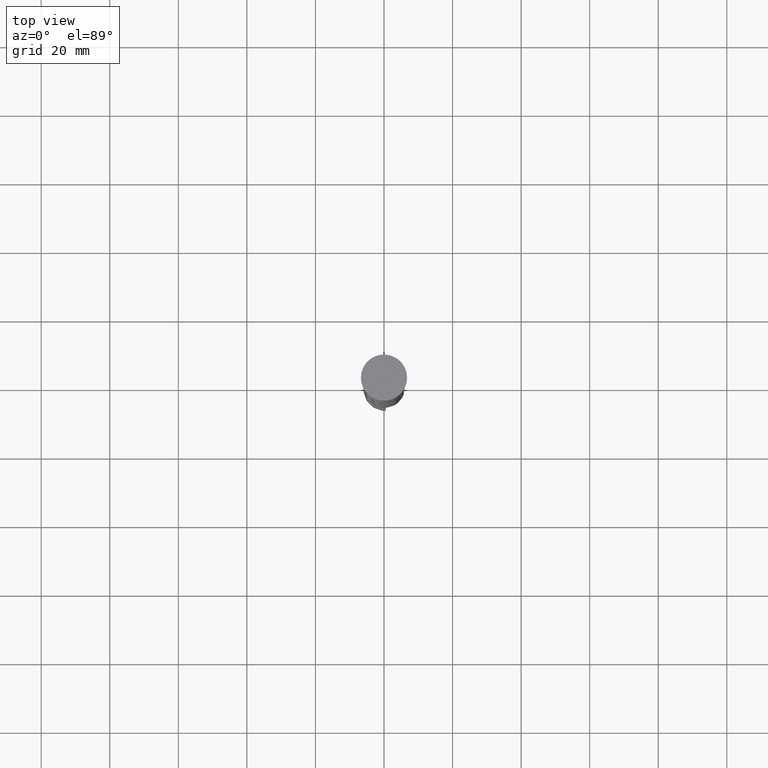
[diagram: clean part render]
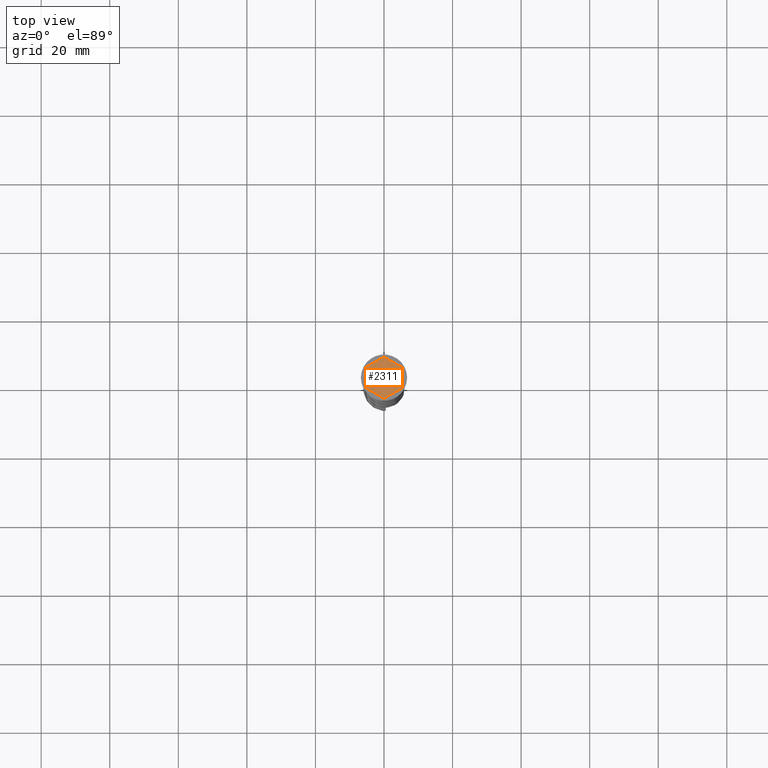
[diagram: same view with one face highlighted and labeled with its STEP entity id]
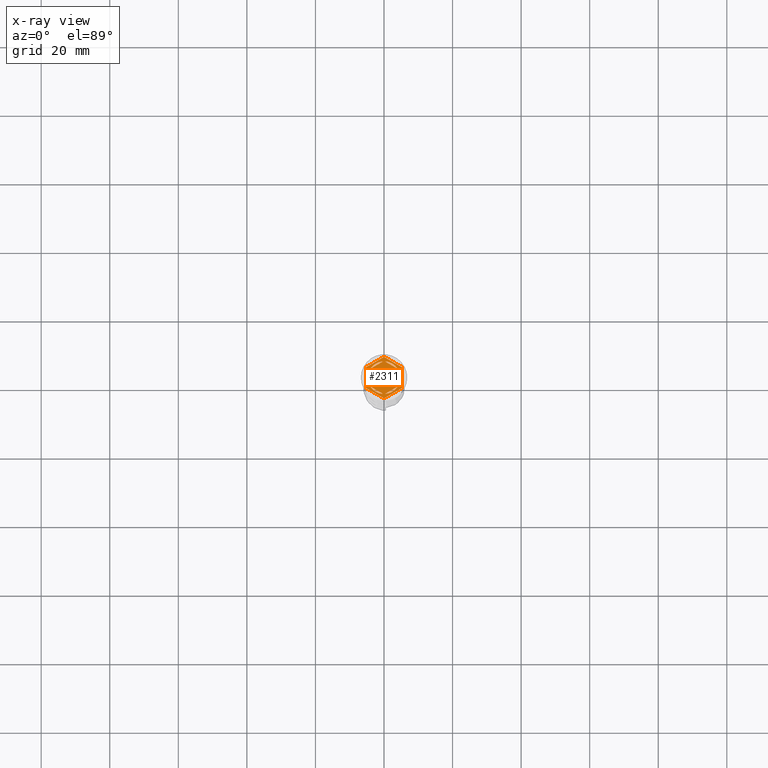
[diagram: x-ray of the same camera — body ghosted, the highlighted face saturated]
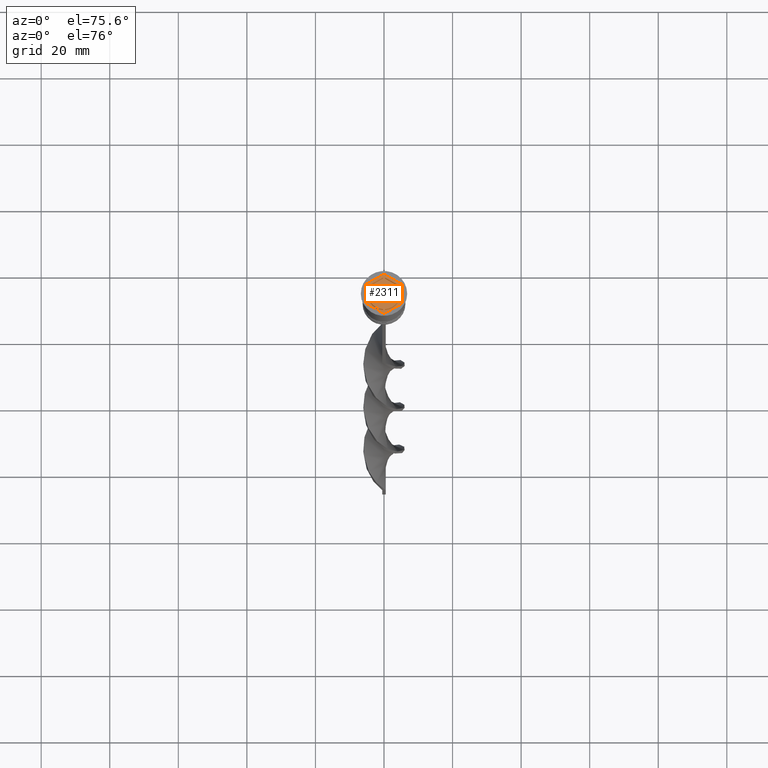
[diagram: same view with one face highlighted and labeled with its STEP entity id]
A machine part, top view. The second image highlights one B-rep face of the part: STEP entity #2311.
The next image is the same camera in x-ray: the body ghosted, the highlighted face saturated — about 0% of this face is hidden behind the body in this view.
A second angle (auxiliary view) of the same face is appended — the face is thin or edge-on in the first view.
In plain terms, the highlighted planar face has unit normal (0, 0, 1).
Its self-contained STEP definition (entity closure, byte-faithful):
#26 = EDGE_CURVE ( 'NONE', #3520, #84, #3733, .T. ) ;
#37 = VECTOR ( 'NONE', #2041, 1000.000000000000227 ) ;
#63 = VERTEX_POINT ( 'NONE', #2863 ) ;
#67 = DIRECTION ( 'NONE',  ( 0.8660254037844387076, -0.4999999999999998335, 0.000000000000000000 ) ) ;
#68 = VERTEX_POINT ( 'NONE', #2566 ) ;
#83 = FACE_BOUND ( 'NONE', #1701, .T. ) ;
#84 = VERTEX_POINT ( 'NONE', #3514 ) ;
#115 = EDGE_CURVE ( 'NONE', #1007, #3139, #2942, .T. ) ;
#140 = ORIENTED_EDGE ( 'NONE', *, *, #115, .T. ) ;
#179 = EDGE_CURVE ( 'NONE', #68, #1491, #2980, .T. ) ;
#250 = EDGE_LOOP ( 'NONE', ( #1474, #140, #1601, #1591, #917, #1534 ) ) ;
#277 = VECTOR ( 'NONE', #2515, 1000.000000000000000 ) ;
#332 = ORIENTED_EDGE ( 'NONE', *, *, #2143, .F. ) ;
#369 = LINE ( 'NONE', #3697, #277 ) ;
#373 = ORIENTED_EDGE ( 'NONE', *, *, #26, .F. ) ;
#380 = EDGE_CURVE ( 'NONE', #1937, #498, #369, .T. ) ;
#382 = DIRECTION ( 'NONE',  ( 1.000000000000000000, 0.000000000000000000, 0.000000000000000000 ) ) ;
#388 = CARTESIAN_POINT ( 'NONE',  ( -5.250000000000000888, -3.031088913245536087, -1.000000000000000000 ) ) ;
#402 = VECTOR ( 'NONE', #2385, 1000.000000000000000 ) ;
#403 = CARTESIAN_POINT ( 'NONE',  ( 0.000000000000000000, 0.000000000000000000, -1.000000000000000000 ) ) ;
#418 = DIRECTION ( 'NONE',  ( 0.000000000000000000, 0.000000000000000000, 1.000000000000000000 ) ) ;
#455 = CARTESIAN_POINT ( 'NONE',  ( -4.250000000000000000, 2.121320343559643717, -1.000000000000000888 ) ) ;
#458 = ORIENTED_EDGE ( 'NONE', *, *, #2617, .F. ) ;
#464 = VECTOR ( 'NONE', #1946, 1000.000000000000000 ) ;
#486 = VERTEX_POINT ( 'NONE', #2411 ) ;
#497 = LINE ( 'NONE', #3767, #3164 ) ;
#498 = VERTEX_POINT ( 'NONE', #860 ) ;
#568 = CARTESIAN_POINT ( 'NONE',  ( 0.000000000000000000, 0.000000000000000000, -1.000000000000000000 ) ) ;
#612 = ORIENTED_EDGE ( 'NONE', *, *, #869, .F. ) ;
#650 = VECTOR ( 'NONE', #861, 1000.000000000000227 ) ;
#654 = DIRECTION ( 'NONE',  ( 0.8660254037844387076, -0.4999999999999998335, 0.000000000000000000 ) ) ;
#670 = FACE_BOUND ( 'NONE', #1262, .T. ) ;
#794 = ORIENTED_EDGE ( 'NONE', *, *, #2791, .F. ) ;
#804 = DIRECTION ( 'NONE',  ( 1.000000000000000000, 0.000000000000000000, 0.000000000000000000 ) ) ;
#840 = DIRECTION ( 'NONE',  ( 1.000000000000000000, 0.000000000000000000, 0.000000000000000000 ) ) ;
#860 = CARTESIAN_POINT ( 'NONE',  ( -0.2878826929126160894, 4.741268137863686505, -1.000000000000000888 ) ) ;
#861 = DIRECTION ( 'NONE',  ( -0.8660254037844385966, 0.4999999999999998890, 0.000000000000000000 ) ) ;
#869 = EDGE_CURVE ( 'NONE', #1491, #2273, #2108, .T. ) ;
#917 = ORIENTED_EDGE ( 'NONE', *, *, #3635, .T. ) ;
#974 = CARTESIAN_POINT ( 'NONE',  ( 5.250000000000000888, -3.031088913245536087, -1.000000000000000000 ) ) ;
#1007 = VERTEX_POINT ( 'NONE', #3432 ) ;
#1022 = EDGE_LOOP ( 'NONE', ( #332, #3718 ) ) ;
#1050 = VERTEX_POINT ( 'NONE', #2625 ) ;
#1082 = CARTESIAN_POINT ( 'NONE',  ( -8.673617379884035472E-16, -4.907477288111819824, -1.000000000000000888 ) ) ;
#1101 = CARTESIAN_POINT ( 'NONE',  ( 3.962117307087384521, 2.619947794304043232, -1.000000000000000888 ) ) ;
#1126 = EDGE_LOOP ( 'NONE', ( #3433, #373 ) ) ;
#1133 = EDGE_CURVE ( 'NONE', #1050, #2071, #3619, .T. ) ;
#1141 = CARTESIAN_POINT ( 'NONE',  ( -5.250000000000000888, -3.031088913245536087, -1.000000000000000000 ) ) ;
#1196 = CARTESIAN_POINT ( 'NONE',  ( -3.962117307087385409, -2.619947794304041899, -1.000000000000000888 ) ) ;
#1221 = LINE ( 'NONE', #388, #2059 ) ;
#1259 = FACE_BOUND ( 'NONE', #3754, .T. ) ;
#1262 = EDGE_LOOP ( 'NONE', ( #794, #1953 ) ) ;
#1317 = AXIS2_PLACEMENT_3D ( 'NONE', #2831, #1616, #1643 ) ;
#1340 = EDGE_CURVE ( 'NONE', #2529, #2416, #2478, .T. ) ;
#1353 = CARTESIAN_POINT ( 'NONE',  ( -3.962117307087385409, 2.619947794304041899, -1.000000000000000888 ) ) ;
#1392 = LINE ( 'NONE', #1698, #464 ) ;
#1401 = CARTESIAN_POINT ( 'NONE',  ( -5.250000000000000888, 3.031088913245535643, -1.000000000000000000 ) ) ;
#1407 = LINE ( 'NONE', #2563, #2920 ) ;
#1439 = AXIS2_PLACEMENT_3D ( 'NONE', #2557, #3742, #804 ) ;
#1474 = ORIENTED_EDGE ( 'NONE', *, *, #1838, .T. ) ;
#1491 = VERTEX_POINT ( 'NONE', #455 ) ;
#1508 = AXIS2_PLACEMENT_3D ( 'NONE', #568, #2627, #3502 ) ;
#1514 = PLANE ( 'NONE',  #2927 ) ;
#1534 = ORIENTED_EDGE ( 'NONE', *, *, #1133, .T. ) ;
#1565 = VECTOR ( 'NONE', #2533, 1000.000000000000114 ) ;
#1585 = EDGE_CURVE ( 'NONE', #486, #2502, #1392, .T. ) ;
#1591 = ORIENTED_EDGE ( 'NONE', *, *, #2333, .T. ) ;
#1601 = ORIENTED_EDGE ( 'NONE', *, *, #1611, .T. ) ;
#1611 = EDGE_CURVE ( 'NONE', #3139, #1642, #1407, .T. ) ;
#1616 = DIRECTION ( 'NONE',  ( 0.000000000000000000, 0.000000000000000000, 1.000000000000000000 ) ) ;
#1622 = AXIS2_PLACEMENT_3D ( 'NONE', #3660, #3376, #3084 ) ;
#1637 = EDGE_CURVE ( 'NONE', #2416, #2529, #497, .T. ) ;
#1642 = VERTEX_POINT ( 'NONE', #1141 ) ;
#1643 = DIRECTION ( 'NONE',  ( 1.000000000000000000, 0.000000000000000000, 0.000000000000000000 ) ) ;
#1647 = DIRECTION ( 'NONE',  ( 1.000000000000000000, 0.000000000000000000, 0.000000000000000000 ) ) ;
#1698 = CARTESIAN_POINT ( 'NONE',  ( 4.249999999999999112, -2.453738644055910356, -1.000000000000000888 ) ) ;
#1701 = EDGE_LOOP ( 'NONE', ( #612, #2693, #458 ) ) ;
#1735 = VECTOR ( 'NONE', #2624, 1000.000000000000000 ) ;
#1783 = FACE_BOUND ( 'NONE', #1022, .T. ) ;
#1802 = FACE_OUTER_BOUND ( 'NONE', #250, .T. ) ;
#1836 = CARTESIAN_POINT ( 'NONE',  ( 4.250000000000000000, 2.453738644055910800, -1.000000000000000888 ) ) ;
#1838 = EDGE_CURVE ( 'NONE', #2071, #1007, #3620, .T. ) ;
#1839 = ORIENTED_EDGE ( 'NONE', *, *, #2955, .F. ) ;
#1876 = CARTESIAN_POINT ( 'NONE',  ( -0.2878826929126160894, -4.741268137863686505, -1.000000000000000888 ) ) ;
#1916 = CARTESIAN_POINT ( 'NONE',  ( 8.729740977282959667E-16, -6.062177826491071286, -1.000000000000000000 ) ) ;
#1937 = VERTEX_POINT ( 'NONE', #1353 ) ;
#1946 = DIRECTION ( 'NONE',  ( -1.767428939690775055E-16, -1.000000000000000000, 0.000000000000000000 ) ) ;
#1953 = ORIENTED_EDGE ( 'NONE', *, *, #2316, .F. ) ;
#1972 = CARTESIAN_POINT ( 'NONE',  ( 0.000000000000000000, 0.000000000000000000, -1.000000000000000000 ) ) ;
#2041 = DIRECTION ( 'NONE',  ( -0.8660254037844385966, -0.5000000000000000000, 0.000000000000000000 ) ) ;
#2047 = AXIS2_PLACEMENT_3D ( 'NONE', #3607, #418, #382 ) ;
#2059 = VECTOR ( 'NONE', #654, 1000.000000000000000 ) ;
#2071 = VERTEX_POINT ( 'NONE', #3115 ) ;
#2108 = CIRCLE ( 'NONE', #3227, 4.750000000000000888 ) ;
#2113 = CIRCLE ( 'NONE', #1439, 4.750000000000000888 ) ;
#2123 = FACE_BOUND ( 'NONE', #3685, .T. ) ;
#2142 = ORIENTED_EDGE ( 'NONE', *, *, #1585, .F. ) ;
#2143 = EDGE_CURVE ( 'NONE', #498, #1937, #2546, .T. ) ;
#2208 = ORIENTED_EDGE ( 'NONE', *, *, #1637, .F. ) ;
#2223 = LINE ( 'NONE', #1916, #1565 ) ;
#2242 = VERTEX_POINT ( 'NONE', #1101 ) ;
#2271 = DIRECTION ( 'NONE',  ( -0.8660254037844385966, 0.5000000000000001110, 0.000000000000000000 ) ) ;
#2273 = VERTEX_POINT ( 'NONE', #3561 ) ;
#2311 = ADVANCED_FACE ( 'NONE', ( #670, #2123, #3036, #1259, #83, #1783, #1802 ), #1514, .T. ) ;
#2316 = EDGE_CURVE ( 'NONE', #3346, #2242, #2414, .T. ) ;
#2333 = EDGE_CURVE ( 'NONE', #1642, #63, #1221, .T. ) ;
#2347 = CARTESIAN_POINT ( 'NONE',  ( 4.249999999999999112, -2.121320343559645938, -1.000000000000000888 ) ) ;
#2385 = DIRECTION ( 'NONE',  ( 0.000000000000000000, 1.000000000000000000, 0.000000000000000000 ) ) ;
#2411 = CARTESIAN_POINT ( 'NONE',  ( 4.249999999999999112, 2.121320343559644162, -1.000000000000000888 ) ) ;
#2414 = LINE ( 'NONE', #1836, #3604 ) ;
#2416 = VERTEX_POINT ( 'NONE', #1876 ) ;
#2478 = CIRCLE ( 'NONE', #3597, 4.750000000000000888 ) ;
#2502 = VERTEX_POINT ( 'NONE', #2347 ) ;
#2515 = DIRECTION ( 'NONE',  ( 0.8660254037844385966, 0.5000000000000001110, -0.000000000000000000 ) ) ;
#2529 = VERTEX_POINT ( 'NONE', #1196 ) ;
#2533 = DIRECTION ( 'NONE',  ( 0.8660254037844385966, 0.4999999999999999445, 0.000000000000000000 ) ) ;
#2546 = CIRCLE ( 'NONE', #1508, 4.750000000000000888 ) ;
#2557 = CARTESIAN_POINT ( 'NONE',  ( 0.000000000000000000, 0.000000000000000000, -1.000000000000000000 ) ) ;
#2563 = CARTESIAN_POINT ( 'NONE',  ( -5.250000000000000888, 3.031088913245535643, -1.000000000000000000 ) ) ;
#2566 = CARTESIAN_POINT ( 'NONE',  ( -4.250000000000000000, -2.121320343559643717, -1.000000000000000888 ) ) ;
#2596 = VECTOR ( 'NONE', #3147, 1000.000000000000000 ) ;
#2617 = EDGE_CURVE ( 'NONE', #2273, #68, #3714, .T. ) ;
#2624 = DIRECTION ( 'NONE',  ( 0.000000000000000000, 1.000000000000000000, 0.000000000000000000 ) ) ;
#2625 = CARTESIAN_POINT ( 'NONE',  ( 5.250000000000000888, -3.031088913245536087, -1.000000000000000000 ) ) ;
#2627 = DIRECTION ( 'NONE',  ( 0.000000000000000000, 0.000000000000000000, 1.000000000000000000 ) ) ;
#2643 = CARTESIAN_POINT ( 'NONE',  ( 0.000000000000000000, 6.062177826491072175, -1.000000000000000000 ) ) ;
#2669 = CIRCLE ( 'NONE', #1622, 4.750000000000000888 ) ;
#2690 = DIRECTION ( 'NONE',  ( 0.000000000000000000, 0.000000000000000000, 1.000000000000000000 ) ) ;
#2693 = ORIENTED_EDGE ( 'NONE', *, *, #179, .F. ) ;
#2791 = EDGE_CURVE ( 'NONE', #2242, #3346, #2995, .T. ) ;
#2831 = CARTESIAN_POINT ( 'NONE',  ( 0.000000000000000000, 0.000000000000000000, -1.000000000000000000 ) ) ;
#2863 = CARTESIAN_POINT ( 'NONE',  ( 8.729740977282959667E-16, -6.062177826491071286, -1.000000000000000000 ) ) ;
#2872 = DIRECTION ( 'NONE',  ( 0.000000000000000000, 0.000000000000000000, 1.000000000000000000 ) ) ;
#2882 = ORIENTED_EDGE ( 'NONE', *, *, #1340, .F. ) ;
#2918 = DIRECTION ( 'NONE',  ( 0.000000000000000000, -1.000000000000000000, 0.000000000000000000 ) ) ;
#2920 = VECTOR ( 'NONE', #2918, 1000.000000000000000 ) ;
#2927 = AXIS2_PLACEMENT_3D ( 'NONE', #3023, #2690, #3295 ) ;
#2942 = LINE ( 'NONE', #2643, #37 ) ;
#2955 = EDGE_CURVE ( 'NONE', #2502, #486, #2669, .T. ) ;
#2980 = LINE ( 'NONE', #3254, #1735 ) ;
#2995 = CIRCLE ( 'NONE', #1317, 4.750000000000000888 ) ;
#3023 = CARTESIAN_POINT ( 'NONE',  ( 0.000000000000000000, 0.000000000000000000, -1.000000000000000000 ) ) ;
#3036 = FACE_BOUND ( 'NONE', #1126, .T. ) ;
#3059 = DIRECTION ( 'NONE',  ( 0.000000000000000000, 0.000000000000000000, 1.000000000000000000 ) ) ;
#3084 = DIRECTION ( 'NONE',  ( 1.000000000000000000, 0.000000000000000000, 0.000000000000000000 ) ) ;
#3115 = CARTESIAN_POINT ( 'NONE',  ( 5.250000000000000888, 3.031088913245536087, -1.000000000000000000 ) ) ;
#3139 = VERTEX_POINT ( 'NONE', #1401 ) ;
#3147 = DIRECTION ( 'NONE',  ( -0.8660254037844387076, -0.4999999999999999445, 0.000000000000000000 ) ) ;
#3164 = VECTOR ( 'NONE', #2271, 1000.000000000000000 ) ;
#3227 = AXIS2_PLACEMENT_3D ( 'NONE', #1972, #2872, #840 ) ;
#3254 = CARTESIAN_POINT ( 'NONE',  ( -4.250000000000000000, 2.453738644055909468, -1.000000000000000888 ) ) ;
#3295 = DIRECTION ( 'NONE',  ( 1.000000000000000000, 0.000000000000000000, -0.000000000000000000 ) ) ;
#3346 = VERTEX_POINT ( 'NONE', #3455 ) ;
#3376 = DIRECTION ( 'NONE',  ( 0.000000000000000000, 0.000000000000000000, 1.000000000000000000 ) ) ;
#3432 = CARTESIAN_POINT ( 'NONE',  ( 0.000000000000000000, 6.062177826491072175, -1.000000000000000000 ) ) ;
#3433 = ORIENTED_EDGE ( 'NONE', *, *, #3805, .F. ) ;
#3455 = CARTESIAN_POINT ( 'NONE',  ( 0.2878826929126145906, 4.741268137863685617, -1.000000000000000888 ) ) ;
#3502 = DIRECTION ( 'NONE',  ( 1.000000000000000000, 0.000000000000000000, 0.000000000000000000 ) ) ;
#3514 = CARTESIAN_POINT ( 'NONE',  ( 0.2878826929126150347, -4.741268137863686505, -1.000000000000000888 ) ) ;
#3520 = VERTEX_POINT ( 'NONE', #3626 ) ;
#3554 = CARTESIAN_POINT ( 'NONE',  ( 5.250000000000000888, 3.031088913245536087, -1.000000000000000000 ) ) ;
#3561 = CARTESIAN_POINT ( 'NONE',  ( -4.750000000000000888, 0.000000000000000000, -1.000000000000000000 ) ) ;
#3597 = AXIS2_PLACEMENT_3D ( 'NONE', #403, #3059, #1647 ) ;
#3604 = VECTOR ( 'NONE', #67, 1000.000000000000000 ) ;
#3607 = CARTESIAN_POINT ( 'NONE',  ( 0.000000000000000000, 0.000000000000000000, -1.000000000000000000 ) ) ;
#3619 = LINE ( 'NONE', #974, #402 ) ;
#3620 = LINE ( 'NONE', #3554, #650 ) ;
#3626 = CARTESIAN_POINT ( 'NONE',  ( 3.962117307087384521, -2.619947794304042787, -1.000000000000000888 ) ) ;
#3635 = EDGE_CURVE ( 'NONE', #63, #1050, #2223, .T. ) ;
#3660 = CARTESIAN_POINT ( 'NONE',  ( 0.000000000000000000, 0.000000000000000000, -1.000000000000000000 ) ) ;
#3685 = EDGE_LOOP ( 'NONE', ( #1839, #2142 ) ) ;
#3697 = CARTESIAN_POINT ( 'NONE',  ( 4.336808689942017736E-16, 4.907477288111819824, -1.000000000000000888 ) ) ;
#3714 = CIRCLE ( 'NONE', #2047, 4.750000000000000888 ) ;
#3718 = ORIENTED_EDGE ( 'NONE', *, *, #380, .F. ) ;
#3733 = LINE ( 'NONE', #1082, #2596 ) ;
#3742 = DIRECTION ( 'NONE',  ( 0.000000000000000000, 0.000000000000000000, 1.000000000000000000 ) ) ;
#3754 = EDGE_LOOP ( 'NONE', ( #2882, #2208 ) ) ;
#3767 = CARTESIAN_POINT ( 'NONE',  ( -4.250000000000000000, -2.453738644055909912, -1.000000000000000888 ) ) ;
#3805 = EDGE_CURVE ( 'NONE', #84, #3520, #2113, .T. ) ;